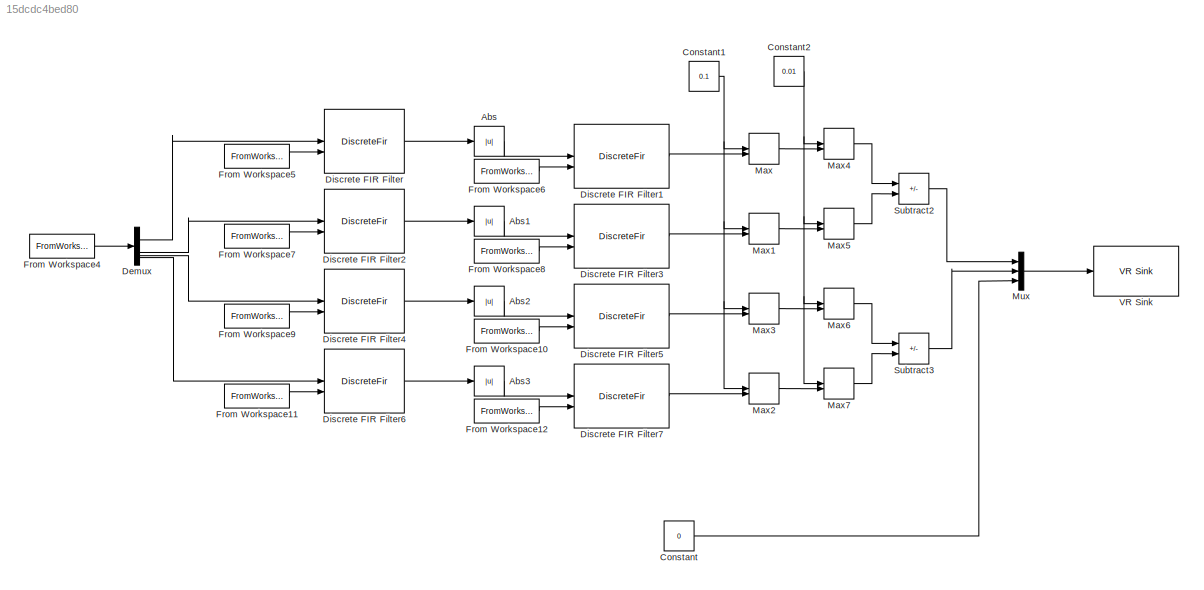
MODEL slx_15dcdc4bed80
KIND model
CONFIG AbsTol = auto
CONFIG EnableMultiTasking = off
CONFIG FixedStep = auto
CONFIG MaxStep = auto
CONFIG MinStep = auto
CONFIG RelTol = 1e-3
CONFIG SampleTimeConstraint = Unconstrained
CONFIG SolverName = VariableStepAuto
CONFIG StartTime = 0.0
CONFIG StopTime = 30
BLOCK [Abs] Abs
  SaturateOnIntegerOverflow = off
BLOCK [Abs] Abs1
  SaturateOnIntegerOverflow = off
BLOCK [Abs] Abs2
  SaturateOnIntegerOverflow = off
BLOCK [Abs] Abs3
  SaturateOnIntegerOverflow = off
BLOCK [Constant] Constant
  Value = 0
BLOCK [Constant] Constant1
  Value = 0.1
BLOCK [Constant] Constant2
  Value = 0.01
BLOCK [Demux] Demux
BLOCK [DiscreteFir] Discrete FIR Filter
  CloseFcn = dspblkCoreblockFVToolHelper(gcbh,'close');
  CoefSource = Input port
  CopyFcn = dspblkCoreblockFVToolHelper(gcbh,'copy');
  DeleteFcn = dspblkCoreblockFVToolHelper(gcbh,'close');
  InputPortMap = u0,u1
  LoadFcn = dspblkCoreblockFVToolHelper(gcbh,'load');
  ModelCloseFcn = dspblkCoreblockFVToolHelper(gcbh,'close');
  OutputPortMap = o0
  PostSaveFcn = dspblkCoreblockFVToolHelper(gcbh,'postsave');
  PreSaveFcn = dspblkCoreblockFVToolHelper(gcbh,'presave');
BLOCK [DiscreteFir] Discrete FIR Filter1
  CloseFcn = dspblkCoreblockFVToolHelper(gcbh,'close');
  CoefSource = Input port
  CopyFcn = dspblkCoreblockFVToolHelper(gcbh,'copy');
  DeleteFcn = dspblkCoreblockFVToolHelper(gcbh,'close');
  InputPortMap = u0,u1
  LoadFcn = dspblkCoreblockFVToolHelper(gcbh,'load');
  ModelCloseFcn = dspblkCoreblockFVToolHelper(gcbh,'close');
  OutputPortMap = o0
  PostSaveFcn = dspblkCoreblockFVToolHelper(gcbh,'postsave');
  PreSaveFcn = dspblkCoreblockFVToolHelper(gcbh,'presave');
BLOCK [DiscreteFir] Discrete FIR Filter2
  CloseFcn = dspblkCoreblockFVToolHelper(gcbh,'close');
  CoefSource = Input port
  CopyFcn = dspblkCoreblockFVToolHelper(gcbh,'copy');
  DeleteFcn = dspblkCoreblockFVToolHelper(gcbh,'close');
  InputPortMap = u0,u1
  LoadFcn = dspblkCoreblockFVToolHelper(gcbh,'load');
  ModelCloseFcn = dspblkCoreblockFVToolHelper(gcbh,'close');
  OutputPortMap = o0
  PostSaveFcn = dspblkCoreblockFVToolHelper(gcbh,'postsave');
  PreSaveFcn = dspblkCoreblockFVToolHelper(gcbh,'presave');
BLOCK [DiscreteFir] Discrete FIR Filter3
  CloseFcn = dspblkCoreblockFVToolHelper(gcbh,'close');
  CoefSource = Input port
  CopyFcn = dspblkCoreblockFVToolHelper(gcbh,'copy');
  DeleteFcn = dspblkCoreblockFVToolHelper(gcbh,'close');
  InputPortMap = u0,u1
  LoadFcn = dspblkCoreblockFVToolHelper(gcbh,'load');
  ModelCloseFcn = dspblkCoreblockFVToolHelper(gcbh,'close');
  OutputPortMap = o0
  PostSaveFcn = dspblkCoreblockFVToolHelper(gcbh,'postsave');
  PreSaveFcn = dspblkCoreblockFVToolHelper(gcbh,'presave');
BLOCK [DiscreteFir] Discrete FIR Filter4
  CloseFcn = dspblkCoreblockFVToolHelper(gcbh,'close');
  CoefSource = Input port
  CopyFcn = dspblkCoreblockFVToolHelper(gcbh,'copy');
  DeleteFcn = dspblkCoreblockFVToolHelper(gcbh,'close');
  InputPortMap = u0,u1
  LoadFcn = dspblkCoreblockFVToolHelper(gcbh,'load');
  ModelCloseFcn = dspblkCoreblockFVToolHelper(gcbh,'close');
  OutputPortMap = o0
  PostSaveFcn = dspblkCoreblockFVToolHelper(gcbh,'postsave');
  PreSaveFcn = dspblkCoreblockFVToolHelper(gcbh,'presave');
BLOCK [DiscreteFir] Discrete FIR Filter5
  CloseFcn = dspblkCoreblockFVToolHelper(gcbh,'close');
  CoefSource = Input port
  CopyFcn = dspblkCoreblockFVToolHelper(gcbh,'copy');
  DeleteFcn = dspblkCoreblockFVToolHelper(gcbh,'close');
  InputPortMap = u0,u1
  LoadFcn = dspblkCoreblockFVToolHelper(gcbh,'load');
  ModelCloseFcn = dspblkCoreblockFVToolHelper(gcbh,'close');
  OutputPortMap = o0
  PostSaveFcn = dspblkCoreblockFVToolHelper(gcbh,'postsave');
  PreSaveFcn = dspblkCoreblockFVToolHelper(gcbh,'presave');
BLOCK [DiscreteFir] Discrete FIR Filter6
  CloseFcn = dspblkCoreblockFVToolHelper(gcbh,'close');
  CoefSource = Input port
  CopyFcn = dspblkCoreblockFVToolHelper(gcbh,'copy');
  DeleteFcn = dspblkCoreblockFVToolHelper(gcbh,'close');
  InputPortMap = u0,u1
  LoadFcn = dspblkCoreblockFVToolHelper(gcbh,'load');
  ModelCloseFcn = dspblkCoreblockFVToolHelper(gcbh,'close');
  OutputPortMap = o0
  PostSaveFcn = dspblkCoreblockFVToolHelper(gcbh,'postsave');
  PreSaveFcn = dspblkCoreblockFVToolHelper(gcbh,'presave');
BLOCK [DiscreteFir] Discrete FIR Filter7
  CloseFcn = dspblkCoreblockFVToolHelper(gcbh,'close');
  CoefSource = Input port
  CopyFcn = dspblkCoreblockFVToolHelper(gcbh,'copy');
  DeleteFcn = dspblkCoreblockFVToolHelper(gcbh,'close');
  InputPortMap = u0,u1
  LoadFcn = dspblkCoreblockFVToolHelper(gcbh,'load');
  ModelCloseFcn = dspblkCoreblockFVToolHelper(gcbh,'close');
  OutputPortMap = o0
  PostSaveFcn = dspblkCoreblockFVToolHelper(gcbh,'postsave');
  PreSaveFcn = dspblkCoreblockFVToolHelper(gcbh,'presave');
BLOCK [FromWorkspace] From Workspace10
  VariableName = lp
BLOCK [FromWorkspace] From Workspace11
  VariableName = bp
BLOCK [FromWorkspace] From Workspace12
  VariableName = lp
BLOCK [FromWorkspace] From Workspace4
  SampleTime = -1
  VariableName = [ES2_emg.time, ES2_emg.signals]
BLOCK [FromWorkspace] From Workspace5
  VariableName = bp
BLOCK [FromWorkspace] From Workspace6
  VariableName = lp
BLOCK [FromWorkspace] From Workspace7
  VariableName = bp
BLOCK [FromWorkspace] From Workspace8
  VariableName = lp
BLOCK [FromWorkspace] From Workspace9
  VariableName = bp
BLOCK [MinMax] Max
  Inputs = 2
BLOCK [MinMax] Max1
  Inputs = 2
BLOCK [MinMax] Max2
  Inputs = 2
BLOCK [MinMax] Max3
  Inputs = 2
BLOCK [MinMax] Max4
  Function = max
  Inputs = 2
BLOCK [MinMax] Max5
  Function = max
  Inputs = 2
BLOCK [MinMax] Max6
  Function = max
  Inputs = 2
BLOCK [MinMax] Max7
  Function = max
  Inputs = 2
BLOCK [Mux] Mux
  DisplayOption = bar
  Inputs = 3
BLOCK [Sum] Subtract2
  IconShape = rectangular
  Inputs = +-
BLOCK [Sum] Subtract3
  IconShape = rectangular
  Inputs = +-
BLOCK [Reference] VR Sink  REF=vrlib/VR Sink
  InstantiateOnLoad = on
  SourceBlock = vrlib/VR Sink
  SourceType = Virtual Reality Sink
LINE Abs1:1 -> Discrete FIR Filter3:1
LINE Abs2:1 -> Discrete FIR Filter5:1
LINE Abs3:1 -> Discrete FIR Filter7:1
LINE Abs:1 -> Discrete FIR Filter1:1
NET Constant1:1 -> Max1:1, Max2:1, Max3:1, Max:1
NET Constant2:1 -> Max4:1, Max5:1, Max6:1, Max7:1
LINE Constant:1 -> Mux:3
LINE Demux:1 -> Discrete FIR Filter:1
LINE Demux:2 -> Discrete FIR Filter2:1
LINE Demux:3 -> Discrete FIR Filter4:1
LINE Demux:4 -> Discrete FIR Filter6:1
LINE Discrete FIR Filter1:1 -> Max:2
LINE Discrete FIR Filter2:1 -> Abs1:1
LINE Discrete FIR Filter3:1 -> Max1:2
LINE Discrete FIR Filter4:1 -> Abs2:1
LINE Discrete FIR Filter5:1 -> Max3:2
LINE Discrete FIR Filter6:1 -> Abs3:1
LINE Discrete FIR Filter7:1 -> Max2:2
LINE Discrete FIR Filter:1 -> Abs:1
LINE From Workspace10:1 -> Discrete FIR Filter5:2
LINE From Workspace11:1 -> Discrete FIR Filter6:2
LINE From Workspace12:1 -> Discrete FIR Filter7:2
LINE From Workspace4:1 -> Demux:1
LINE From Workspace5:1 -> Discrete FIR Filter:2
LINE From Workspace6:1 -> Discrete FIR Filter1:2
LINE From Workspace7:1 -> Discrete FIR Filter2:2
LINE From Workspace8:1 -> Discrete FIR Filter3:2
LINE From Workspace9:1 -> Discrete FIR Filter4:2
LINE Max1:1 -> Max5:2
LINE Max2:1 -> Max7:2
LINE Max3:1 -> Max6:2
LINE Max4:1 -> Subtract2:1
LINE Max5:1 -> Subtract2:2
LINE Max6:1 -> Subtract3:1
LINE Max7:1 -> Subtract3:2
LINE Max:1 -> Max4:2
LINE Mux:1 -> VR Sink:1
LINE Subtract2:1 -> Mux:1
LINE Subtract3:1 -> Mux:2
note: NET lines group one-source signal fan-out (src -> all destinations, sorted); 1:1 wires keep LINE
